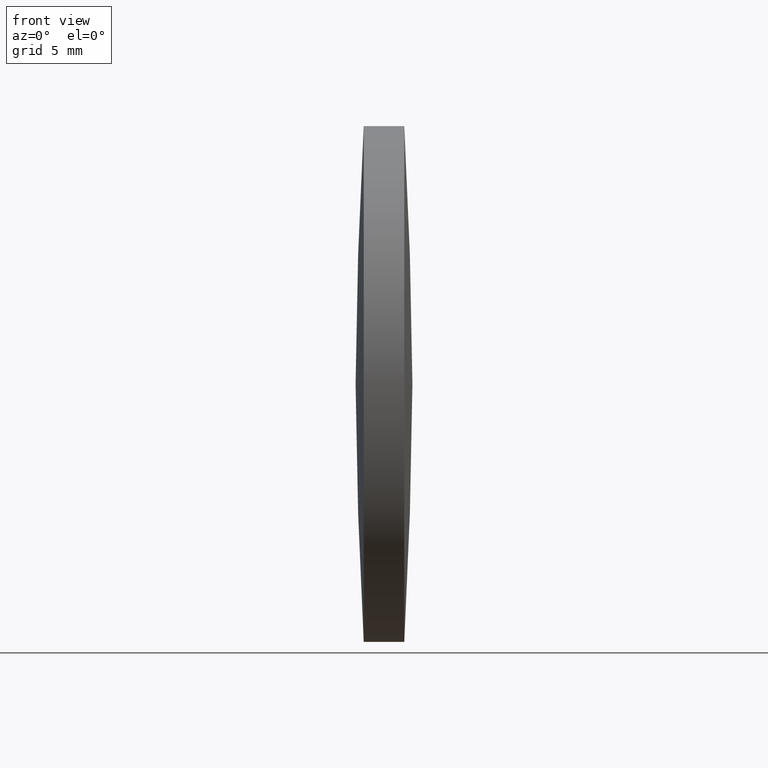
[diagram: clean part render]
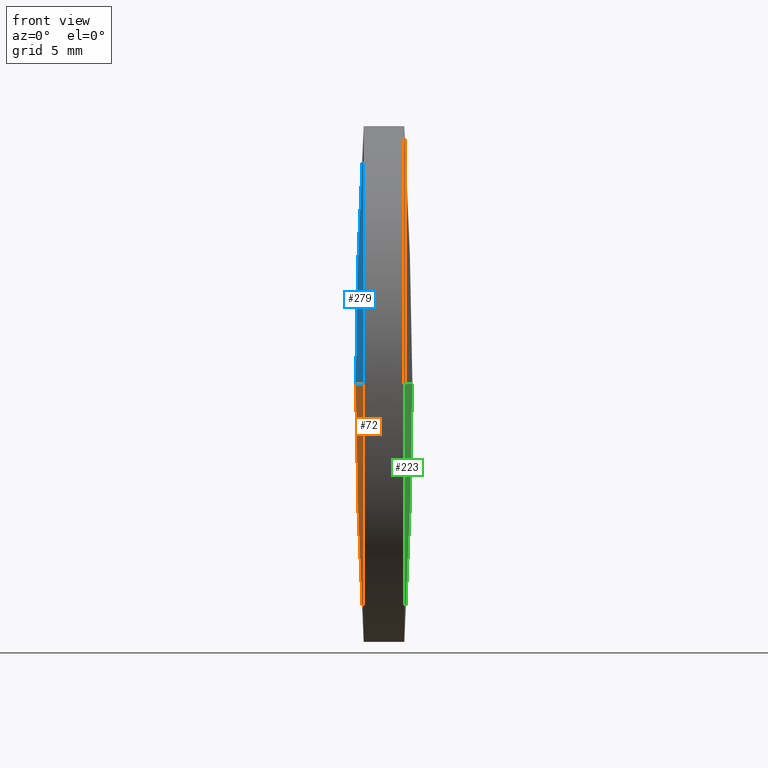
[diagram: same view with three faces highlighted in distinct colors, each labeled with its STEP entity id]
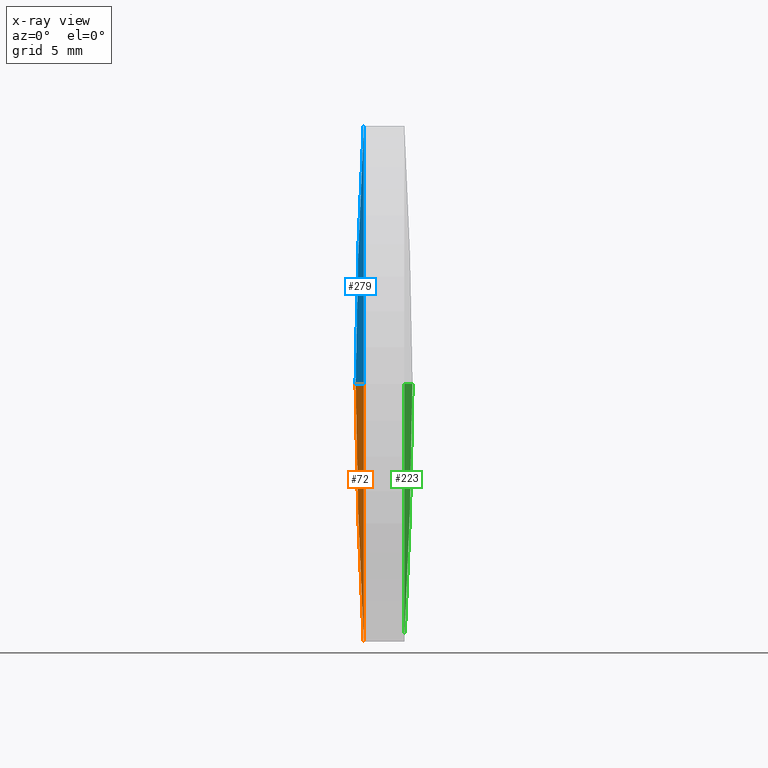
[diagram: x-ray of the same camera — body ghosted, the three highlighted faces saturated]
A machine part, front view with three faces highlighted in distinct colors.
The next image is the same camera in x-ray (body ghosted, the three faces saturated) — at least one of them is partly hidden behind the body in this view.
Their STEP definitions:

[orange] entity #72 — the highlighted spherical surface has radius 201.66 mm.
#2 = CARTESIAN_POINT ( 'NONE',  ( 85.45852234609111500, 48.61611302318478100, -12.69999999999999600 ) ) ;
#29 = DIRECTION ( 'NONE',  ( 0.0000000000000000000, 1.000000000000000000, 1.224646799147353500E-016 ) ) ;
#31 = EDGE_CURVE ( 'NONE', #328, #52, #111, .T. ) ;
#35 = FACE_OUTER_BOUND ( 'NONE', #163, .T. ) ;
#44 = ORIENTED_EDGE ( 'NONE', *, *, #273, .T. ) ;
#52 = VERTEX_POINT ( 'NONE', #2 ) ;
#57 = CIRCLE ( 'NONE', #228, 201.6595428629401900 ) ;
#60 = AXIS2_PLACEMENT_3D ( 'NONE', #266, #139, #320 ) ;
#66 = DIRECTION ( 'NONE',  ( 0.0000000000000000000, 0.0000000000000000000, 1.000000000000000000 ) ) ;
#72 = ADVANCED_FACE ( 'NONE', ( #35 ), #145, .T. ) ;
#105 = CARTESIAN_POINT ( 'NONE',  ( 286.7177612090313200, 48.61611302318415500, 0.0000000000000000000 ) ) ;
#111 = CIRCLE ( 'NONE', #193, 12.69999999999999600 ) ;
#113 = CARTESIAN_POINT ( 'NONE',  ( 85.45852234609111500, 61.31611302318436400, 0.0000000000000000000 ) ) ;
#121 = CARTESIAN_POINT ( 'NONE',  ( 85.45852234609111500, 35.91611302318457900, -1.555301434917087000E-015 ) ) ;
#122 = DIRECTION ( 'NONE',  ( -1.000000000000000000, -0.0000000000000000000, -0.0000000000000000000 ) ) ;
#135 = DIRECTION ( 'NONE',  ( 1.000000000000000000, 0.0000000000000000000, 0.0000000000000000000 ) ) ;
#139 = DIRECTION ( 'NONE',  ( -0.0000000000000000000, 0.0000000000000000000, -1.000000000000000000 ) ) ;
#142 = CARTESIAN_POINT ( 'NONE',  ( 85.05821834609112400, 48.61611302318417000, 0.0000000000000000000 ) ) ;
#145 = SPHERICAL_SURFACE ( 'NONE', #60, 201.6595428629401900 ) ;
#159 = CARTESIAN_POINT ( 'NONE',  ( 85.45852234609111500, 48.61611302318478100, 0.0000000000000000000 ) ) ;
#163 = EDGE_LOOP ( 'NONE', ( #275, #44, #299, #210 ) ) ;
#182 = DIRECTION ( 'NONE',  ( 0.0000000000000000000, 1.224646799147353200E-016, -1.000000000000000000 ) ) ;
#193 = AXIS2_PLACEMENT_3D ( 'NONE', #159, #265, #237 ) ;
#203 = CIRCLE ( 'NONE', #281, 12.69999999999999600 ) ;
#205 = DIRECTION ( 'NONE',  ( -0.0000000000000000000, 0.0000000000000000000, 1.000000000000000000 ) ) ;
#210 = ORIENTED_EDGE ( 'NONE', *, *, #338, .F. ) ;
#221 = VERTEX_POINT ( 'NONE', #142 ) ;
#228 = AXIS2_PLACEMENT_3D ( 'NONE', #339, #205, #135 ) ;
#237 = DIRECTION ( 'NONE',  ( 0.0000000000000000000, 0.0000000000000000000, 1.000000000000000000 ) ) ;
#253 = VERTEX_POINT ( 'NONE', #121 ) ;
#263 = CIRCLE ( 'NONE', #303, 201.6595428629401600 ) ;
#265 = DIRECTION ( 'NONE',  ( -1.000000000000000000, -0.0000000000000000000, -0.0000000000000000000 ) ) ;
#266 = CARTESIAN_POINT ( 'NONE',  ( 286.7177612090313200, 48.61611302318415500, 0.0000000000000000000 ) ) ;
#272 = CARTESIAN_POINT ( 'NONE',  ( 85.45852234609111500, 48.61611302318478100, 0.0000000000000000000 ) ) ;
#273 = EDGE_CURVE ( 'NONE', #52, #253, #203, .T. ) ;
#275 = ORIENTED_EDGE ( 'NONE', *, *, #31, .T. ) ;
#281 = AXIS2_PLACEMENT_3D ( 'NONE', #272, #122, #66 ) ;
#299 = ORIENTED_EDGE ( 'NONE', *, *, #345, .T. ) ;
#303 = AXIS2_PLACEMENT_3D ( 'NONE', #105, #182, #29 ) ;
#320 = DIRECTION ( 'NONE',  ( 0.0000000000000000000, 1.000000000000000000, 0.0000000000000000000 ) ) ;
#328 = VERTEX_POINT ( 'NONE', #113 ) ;
#338 = EDGE_CURVE ( 'NONE', #328, #221, #57, .T. ) ;
#339 = CARTESIAN_POINT ( 'NONE',  ( 286.7177612090313200, 48.61611302318415500, 0.0000000000000000000 ) ) ;
#345 = EDGE_CURVE ( 'NONE', #253, #221, #263, .T. ) ;

[blue] entity #279 — the highlighted spherical surface has radius 201.66 mm.
#3 = DIRECTION ( 'NONE',  ( -1.000000000000000000, -0.0000000000000000000, -0.0000000000000000000 ) ) ;
#6 = CARTESIAN_POINT ( 'NONE',  ( 85.45852234609111500, 48.61611302318478100, 0.0000000000000000000 ) ) ;
#18 = EDGE_CURVE ( 'NONE', #253, #302, #282, .T. ) ;
#28 = ORIENTED_EDGE ( 'NONE', *, *, #338, .T. ) ;
#29 = DIRECTION ( 'NONE',  ( 0.0000000000000000000, 1.000000000000000000, 1.224646799147353500E-016 ) ) ;
#57 = CIRCLE ( 'NONE', #228, 201.6595428629401900 ) ;
#58 = ORIENTED_EDGE ( 'NONE', *, *, #18, .T. ) ;
#71 = AXIS2_PLACEMENT_3D ( 'NONE', #167, #245, #241 ) ;
#74 = AXIS2_PLACEMENT_3D ( 'NONE', #217, #91, #92 ) ;
#81 = CARTESIAN_POINT ( 'NONE',  ( 85.45852234609111500, 48.61611302318478100, 12.69999999999999600 ) ) ;
#91 = DIRECTION ( 'NONE',  ( -0.0000000000000000000, 0.0000000000000000000, -1.000000000000000000 ) ) ;
#92 = DIRECTION ( 'NONE',  ( 0.0000000000000000000, 1.000000000000000000, 0.0000000000000000000 ) ) ;
#103 = AXIS2_PLACEMENT_3D ( 'NONE', #6, #3, #212 ) ;
#105 = CARTESIAN_POINT ( 'NONE',  ( 286.7177612090313200, 48.61611302318415500, 0.0000000000000000000 ) ) ;
#113 = CARTESIAN_POINT ( 'NONE',  ( 85.45852234609111500, 61.31611302318436400, 0.0000000000000000000 ) ) ;
#121 = CARTESIAN_POINT ( 'NONE',  ( 85.45852234609111500, 35.91611302318457900, -1.555301434917087000E-015 ) ) ;
#135 = DIRECTION ( 'NONE',  ( 1.000000000000000000, 0.0000000000000000000, 0.0000000000000000000 ) ) ;
#142 = CARTESIAN_POINT ( 'NONE',  ( 85.05821834609112400, 48.61611302318417000, 0.0000000000000000000 ) ) ;
#167 = CARTESIAN_POINT ( 'NONE',  ( 85.45852234609111500, 48.61611302318478100, 0.0000000000000000000 ) ) ;
#182 = DIRECTION ( 'NONE',  ( 0.0000000000000000000, 1.224646799147353200E-016, -1.000000000000000000 ) ) ;
#185 = FACE_OUTER_BOUND ( 'NONE', #283, .T. ) ;
#205 = DIRECTION ( 'NONE',  ( -0.0000000000000000000, 0.0000000000000000000, 1.000000000000000000 ) ) ;
#212 = DIRECTION ( 'NONE',  ( 0.0000000000000000000, 0.0000000000000000000, 1.000000000000000000 ) ) ;
#213 = CIRCLE ( 'NONE', #71, 12.69999999999999600 ) ;
#217 = CARTESIAN_POINT ( 'NONE',  ( 286.7177612090313200, 48.61611302318415500, 0.0000000000000000000 ) ) ;
#221 = VERTEX_POINT ( 'NONE', #142 ) ;
#228 = AXIS2_PLACEMENT_3D ( 'NONE', #339, #205, #135 ) ;
#235 = SPHERICAL_SURFACE ( 'NONE', #74, 201.6595428629401900 ) ;
#236 = EDGE_CURVE ( 'NONE', #302, #328, #213, .T. ) ;
#241 = DIRECTION ( 'NONE',  ( 0.0000000000000000000, 0.0000000000000000000, 1.000000000000000000 ) ) ;
#245 = DIRECTION ( 'NONE',  ( -1.000000000000000000, -0.0000000000000000000, -0.0000000000000000000 ) ) ;
#253 = VERTEX_POINT ( 'NONE', #121 ) ;
#263 = CIRCLE ( 'NONE', #303, 201.6595428629401600 ) ;
#279 = ADVANCED_FACE ( 'NONE', ( #185 ), #235, .T. ) ;
#282 = CIRCLE ( 'NONE', #103, 12.69999999999999600 ) ;
#283 = EDGE_LOOP ( 'NONE', ( #326, #58, #335, #28 ) ) ;
#302 = VERTEX_POINT ( 'NONE', #81 ) ;
#303 = AXIS2_PLACEMENT_3D ( 'NONE', #105, #182, #29 ) ;
#326 = ORIENTED_EDGE ( 'NONE', *, *, #345, .F. ) ;
#328 = VERTEX_POINT ( 'NONE', #113 ) ;
#335 = ORIENTED_EDGE ( 'NONE', *, *, #236, .T. ) ;
#338 = EDGE_CURVE ( 'NONE', #328, #221, #57, .T. ) ;
#339 = CARTESIAN_POINT ( 'NONE',  ( 286.7177612090313200, 48.61611302318415500, 0.0000000000000000000 ) ) ;
#345 = EDGE_CURVE ( 'NONE', #253, #221, #263, .T. ) ;

[green] entity #223 — the highlighted spherical surface has radius 201.66 mm.
#1 = AXIS2_PLACEMENT_3D ( 'NONE', #160, #211, #30 ) ;
#11 = EDGE_CURVE ( 'NONE', #73, #296, #157, .T. ) ;
#17 = ORIENTED_EDGE ( 'NONE', *, *, #65, .T. ) ;
#30 = DIRECTION ( 'NONE',  ( -1.000000000000000000, 0.0000000000000000000, 0.0000000000000000000 ) ) ;
#34 = CARTESIAN_POINT ( 'NONE',  ( 87.85816920323401300, 48.61611302318509300, 0.0000000000000000000 ) ) ;
#37 = DIRECTION ( 'NONE',  ( 0.0000000000000000000, 0.0000000000000000000, 1.000000000000000000 ) ) ;
#42 = SPHERICAL_SURFACE ( 'NONE', #53, 201.6595428629199500 ) ;
#48 = DIRECTION ( 'NONE',  ( 0.0000000000000000000, -1.224646799147353200E-016, 1.000000000000000000 ) ) ;
#53 = AXIS2_PLACEMENT_3D ( 'NONE', #220, #165, #297 ) ;
#59 = CARTESIAN_POINT ( 'NONE',  ( 87.45786520323396500, 48.61611302318478100, -12.69999999999999600 ) ) ;
#62 = CARTESIAN_POINT ( 'NONE',  ( 87.45786520323396500, 48.61611302318478100, 0.0000000000000000000 ) ) ;
#65 = EDGE_CURVE ( 'NONE', #239, #296, #152, .T. ) ;
#68 = ORIENTED_EDGE ( 'NONE', *, *, #11, .F. ) ;
#73 = VERTEX_POINT ( 'NONE', #59 ) ;
#99 = ORIENTED_EDGE ( 'NONE', *, *, #194, .F. ) ;
#112 = AXIS2_PLACEMENT_3D ( 'NONE', #202, #48, #284 ) ;
#116 = CARTESIAN_POINT ( 'NONE',  ( 87.45786520323395100, 61.31611302318497500, 1.555301434917121700E-015 ) ) ;
#120 = FACE_OUTER_BOUND ( 'NONE', #128, .T. ) ;
#126 = VERTEX_POINT ( 'NONE', #116 ) ;
#128 = EDGE_LOOP ( 'NONE', ( #322, #17, #68, #99 ) ) ;
#144 = CIRCLE ( 'NONE', #112, 201.6595428629199500 ) ;
#150 = AXIS2_PLACEMENT_3D ( 'NONE', #216, #271, #37 ) ;
#152 = CIRCLE ( 'NONE', #1, 201.6595428629199200 ) ;
#157 = CIRCLE ( 'NONE', #222, 12.69999999999999600 ) ;
#160 = CARTESIAN_POINT ( 'NONE',  ( -113.8013736596859400, 48.61611302318510800, 0.0000000000000000000 ) ) ;
#161 = DIRECTION ( 'NONE',  ( 0.0000000000000000000, 0.0000000000000000000, 1.000000000000000000 ) ) ;
#165 = DIRECTION ( 'NONE',  ( 0.0000000000000000000, 0.0000000000000000000, 1.000000000000000000 ) ) ;
#180 = CIRCLE ( 'NONE', #150, 12.69999999999999600 ) ;
#194 = EDGE_CURVE ( 'NONE', #126, #73, #180, .T. ) ;
#202 = CARTESIAN_POINT ( 'NONE',  ( -113.8013736596859400, 48.61611302318510800, 0.0000000000000000000 ) ) ;
#211 = DIRECTION ( 'NONE',  ( 0.0000000000000000000, 0.0000000000000000000, -1.000000000000000000 ) ) ;
#216 = CARTESIAN_POINT ( 'NONE',  ( 87.45786520323396500, 48.61611302318478100, 0.0000000000000000000 ) ) ;
#220 = CARTESIAN_POINT ( 'NONE',  ( -113.8013736596859400, 48.61611302318510800, 0.0000000000000000000 ) ) ;
#222 = AXIS2_PLACEMENT_3D ( 'NONE', #62, #319, #161 ) ;
#223 = ADVANCED_FACE ( 'NONE', ( #120 ), #42, .T. ) ;
#239 = VERTEX_POINT ( 'NONE', #34 ) ;
#271 = DIRECTION ( 'NONE',  ( -1.000000000000000000, -0.0000000000000000000, -0.0000000000000000000 ) ) ;
#284 = DIRECTION ( 'NONE',  ( 0.0000000000000000000, -1.000000000000000000, -1.224646799147353200E-016 ) ) ;
#296 = VERTEX_POINT ( 'NONE', #312 ) ;
#297 = DIRECTION ( 'NONE',  ( 0.0000000000000000000, -1.000000000000000000, 0.0000000000000000000 ) ) ;
#307 = EDGE_CURVE ( 'NONE', #239, #126, #144, .T. ) ;
#312 = CARTESIAN_POINT ( 'NONE',  ( 87.45786520323395100, 35.91611302318492000, 0.0000000000000000000 ) ) ;
#319 = DIRECTION ( 'NONE',  ( -1.000000000000000000, -0.0000000000000000000, -0.0000000000000000000 ) ) ;
#322 = ORIENTED_EDGE ( 'NONE', *, *, #307, .F. ) ;